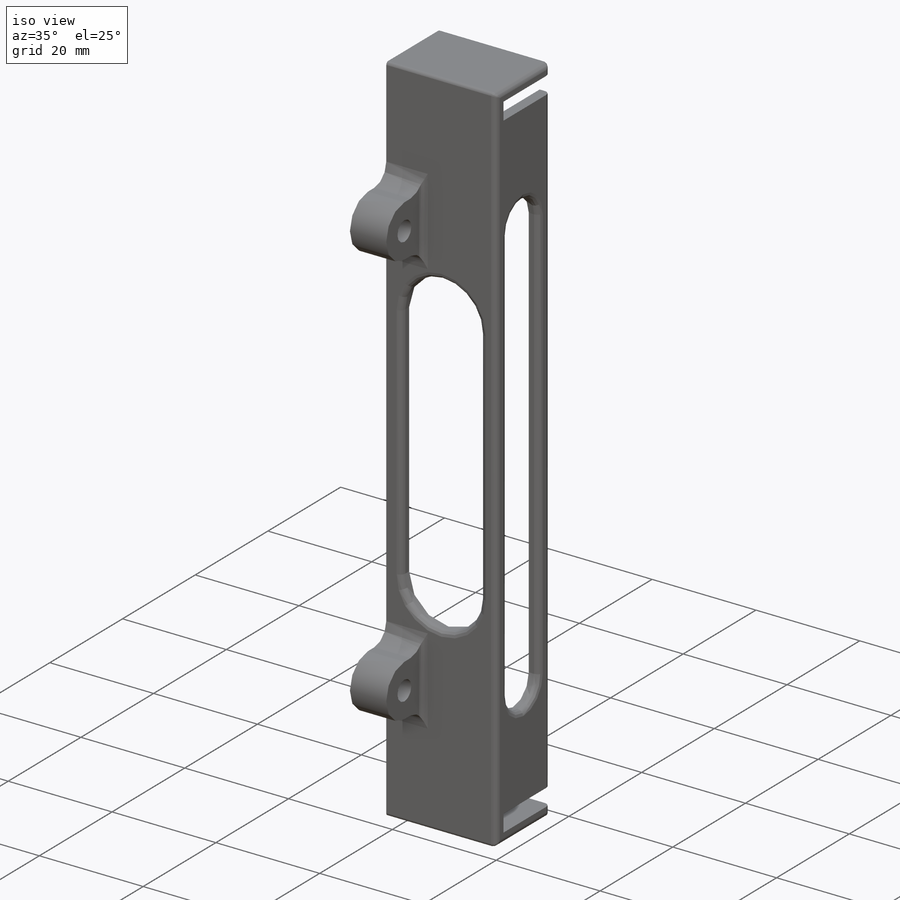
[diagram: iso view]
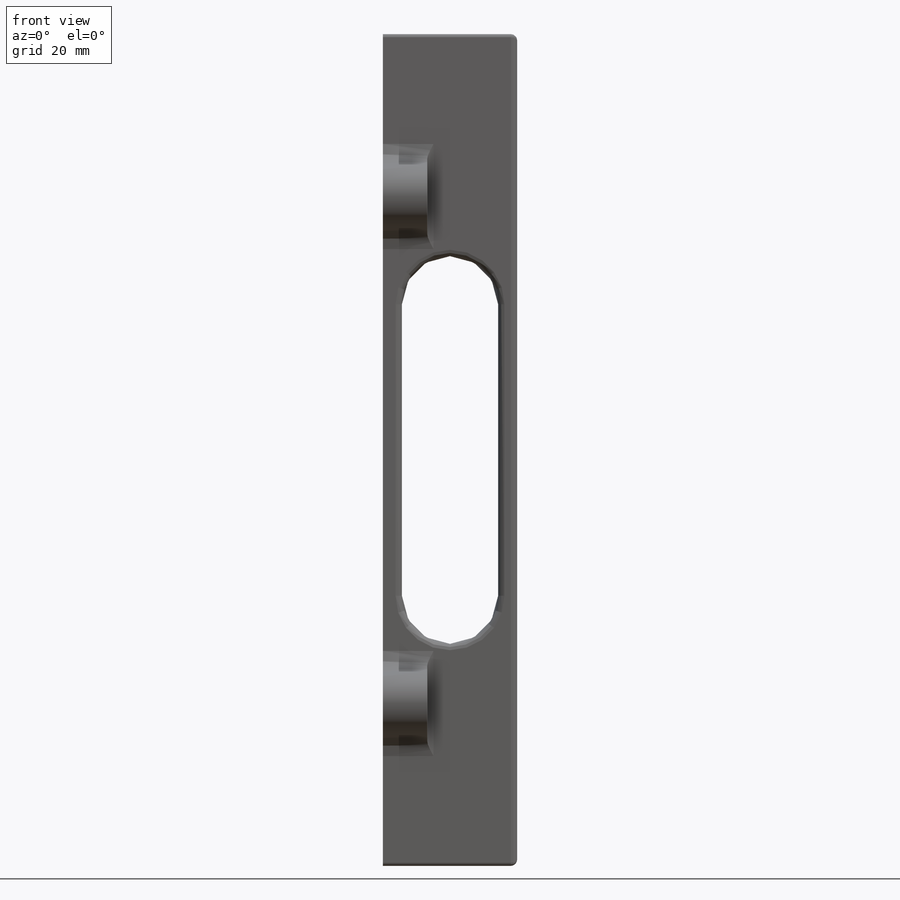
[diagram: front view]
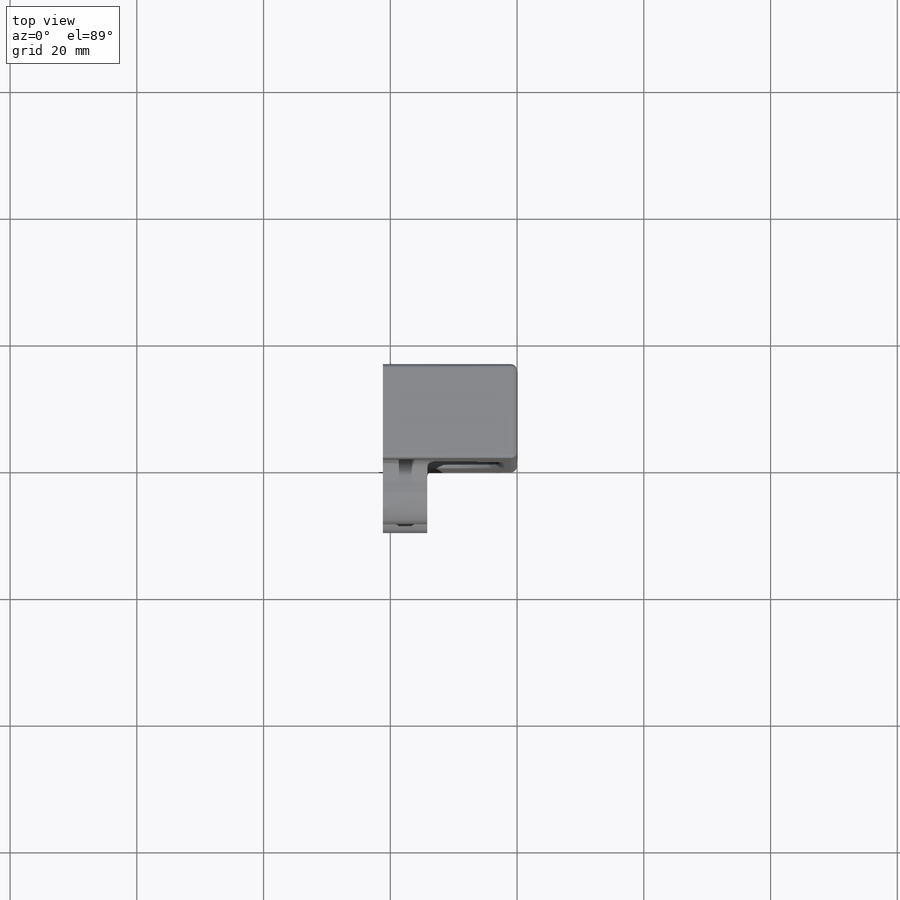
[diagram: top view]
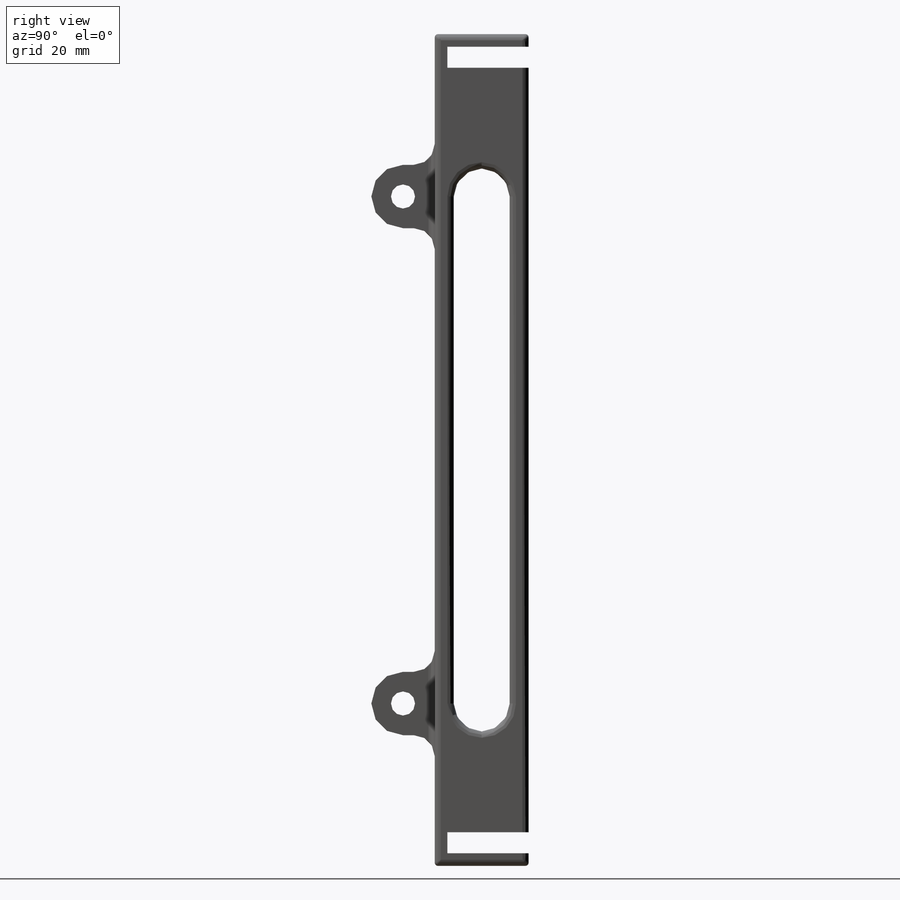
[diagram: right view]
SOLIDWORKS PART (.sldprt)
format: sldprt  version: not decoded by parser v0  size: 327,680 bytes
history: native  units: mm
features: sketch x7, cut_extrude x3, fillet x3, extrude x2, mirror x2, material x1, shell x1, hole x1, thread x1 (+11 scaffold rows collapsed)
feature tree (32):
  scaffold x11  (default folders/planes/origin — collapsed)
  material  "Material <not specified>"
  sketch  "Sketch1"  dims[D1=21.177mm D2=14.827mm]
  extrude  "Boss-Extrude1"  Depth=131.254mm
  shell  "Shell1"  Thickness=2mm
  sketch  "Sketch2"  dims[D1=3.302mm]
  cut_extrude  "Cut-Extrude1"  [1 undecoded]
  mirror  "Mirror1"
  sketch  "Sketch3"  dims[D1=10.0mm D2=40.0mm]
  extrude  "Boss-Extrude2"  Depth=7mm
  hole  "#10-24 Tapped Hole1"  Diameter=3.7973mm Depth=21.177mm
  sketch  "Sketch5"
  sketch  "Sketch4"  dims[hole-wizard template sketch: 60 standard entries collapsed; hole parameters kept: c18.Thru Tap Drill Depth=21.177mm]
  thread  "Hole Thread1"  Diameter=4.826mm  [1 undecoded]
  fillet  "Fillet1"  Radius=3.3mm
  sketch  "Sketch6"  dims[c1.D1=3.0mm c1.D2=100.0mm c1.D3=3.0mm c2.D2=46.0mm]
  cut_extrude  "Cut-Extrude2"  [1 undecoded]
  mirror  "Mirror2"
  sketch  "Sketch7"  dims[c1.D1=82.0mm c1.D2=3.0mm c2.D1=80.0mm]
  cut_extrude  "Cut-Extrude3"  [1 undecoded]
  fillet  "Fillet2"  Radius=1mm
  fillet  "Fillet3"  Radius=0.5mm
decode coverage: 14 of 20 modeling features carry decoded parameters
note: ~ marks probable driven/reference dimensions
note: 4 parameter values undecoded
summary: no parameter record found for 3 features
note: suppression state not decoded; provenance and decode notes live in map.json
